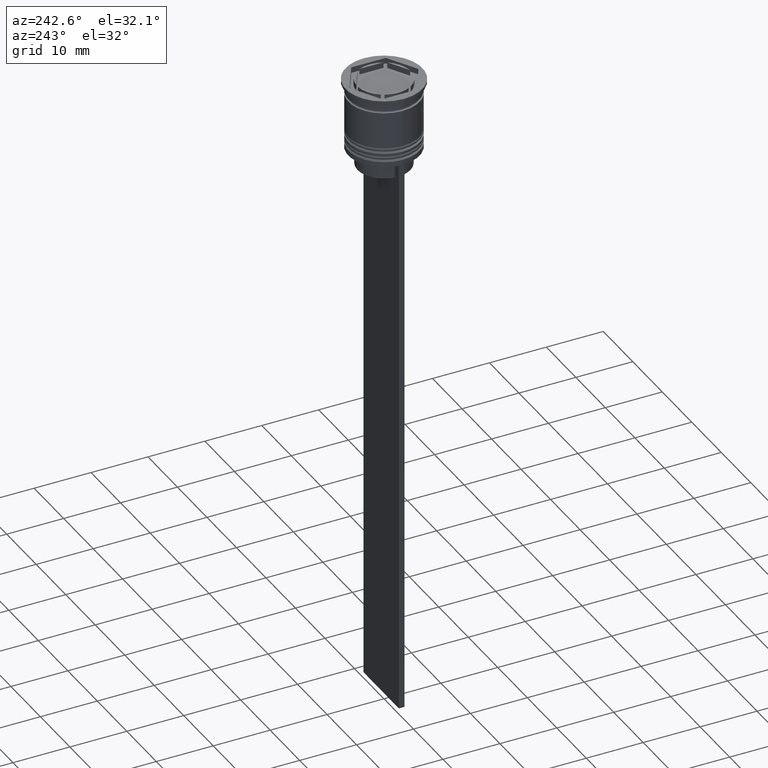
[diagram: clean part render]
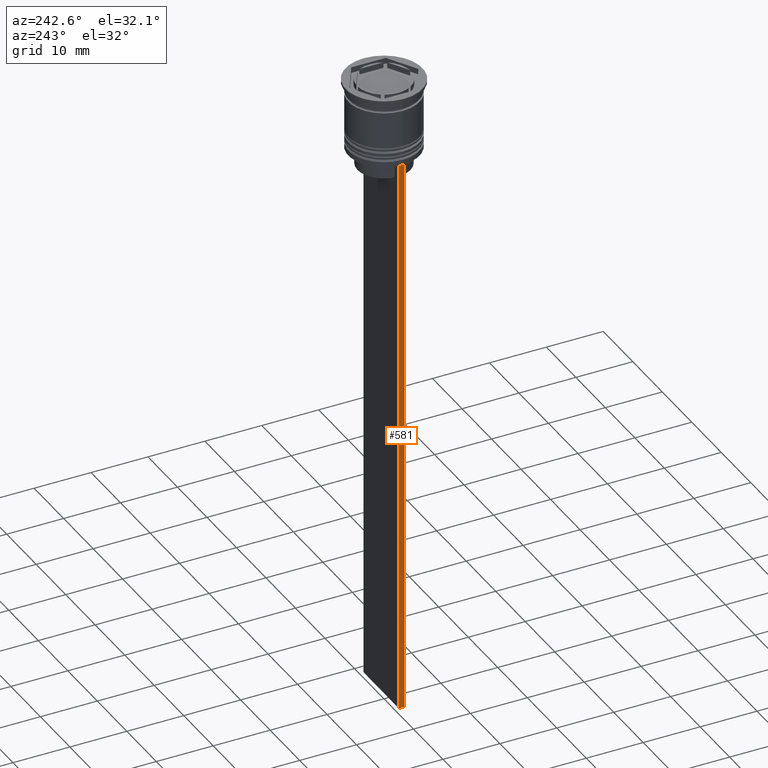
[diagram: same view with one face highlighted and labeled with its STEP entity id]
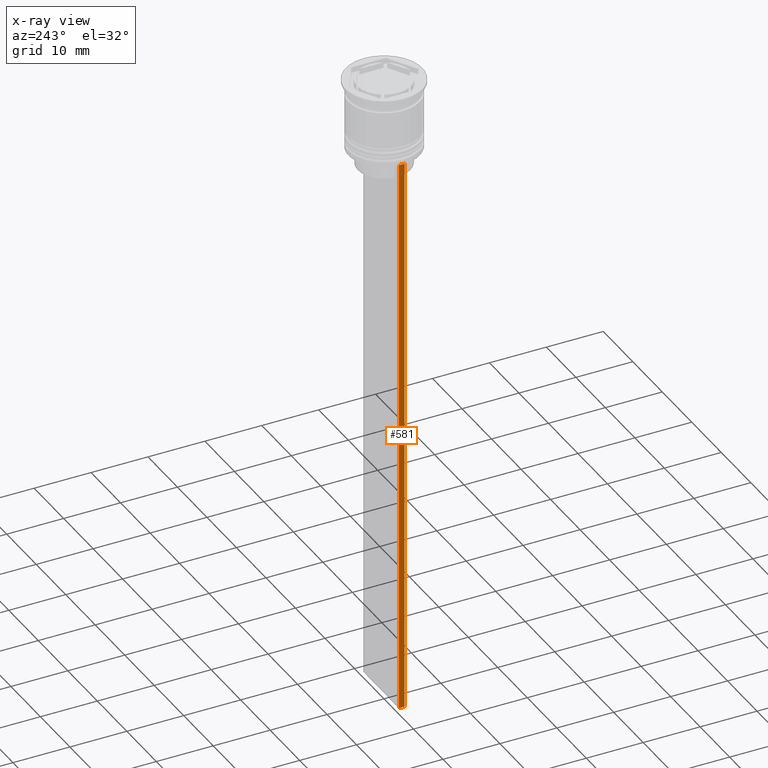
[diagram: x-ray of the same camera — body ghosted, the highlighted face saturated]
A machine part, auxiliary view. The second image highlights one B-rep face of the part: STEP entity #581.
The next image is the same camera in x-ray: the body ghosted, the highlighted face saturated — about 0% of this face is hidden behind the body in this view.
In plain terms, the highlighted planar face has unit normal (-1, 0, 0).
Its self-contained STEP definition (entity closure, byte-faithful):
#3 = ORIENTED_EDGE ( 'NONE', *, *, #1563, .T. ) ;
#18 = DIRECTION ( 'NONE',  ( 0.000000000000000000, 1.000000000000000000, 0.000000000000000000 ) ) ;
#84 = CARTESIAN_POINT ( 'NONE',  ( -5.999999999999983125, -0.5000000000000017764, -12.50000000000000000 ) ) ;
#220 = EDGE_LOOP ( 'NONE', ( #968, #3, #1863, #418 ) ) ;
#418 = ORIENTED_EDGE ( 'NONE', *, *, #2159, .F. ) ;
#435 = VECTOR ( 'NONE', #18, 1000.000000000000000 ) ;
#437 = DIRECTION ( 'NONE',  ( 0.000000000000000000, 0.000000000000000000, -1.000000000000000000 ) ) ;
#570 = EDGE_CURVE ( 'NONE', #2320, #1318, #774, .T. ) ;
#581 = ADVANCED_FACE ( 'NONE', ( #922 ), #2229, .T. ) ;
#613 = DIRECTION ( 'NONE',  ( -1.000000000000000000, 0.000000000000000000, 0.000000000000000000 ) ) ;
#721 = VERTEX_POINT ( 'NONE', #977 ) ;
#736 = VECTOR ( 'NONE', #437, 1000.000000000000000 ) ;
#774 = LINE ( 'NONE', #84, #879 ) ;
#784 = DIRECTION ( 'NONE',  ( 0.000000000000000000, -1.000000000000000000, 0.000000000000000000 ) ) ;
#792 = CARTESIAN_POINT ( 'NONE',  ( -5.999999999999983125, -0.5000000000000017764, -0.4584054212077061097 ) ) ;
#878 = VECTOR ( 'NONE', #1703, 1000.000000000000000 ) ;
#879 = VECTOR ( 'NONE', #784, 1000.000000000000000 ) ;
#922 = FACE_OUTER_BOUND ( 'NONE', #220, .T. ) ;
#968 = ORIENTED_EDGE ( 'NONE', *, *, #570, .F. ) ;
#977 = CARTESIAN_POINT ( 'NONE',  ( -5.999999999999983125, -0.5000000000000017764, -112.5000000000000000 ) ) ;
#1056 = CARTESIAN_POINT ( 'NONE',  ( -5.999999999999983125, -0.5000000000000017764, -12.50000000000000000 ) ) ;
#1318 = VERTEX_POINT ( 'NONE', #1056 ) ;
#1353 = EDGE_CURVE ( 'NONE', #721, #1811, #1482, .T. ) ;
#1354 = LINE ( 'NONE', #2277, #878 ) ;
#1391 = CARTESIAN_POINT ( 'NONE',  ( -5.999999999999983125, 0.4999999999999982792, -112.5000000000000000 ) ) ;
#1419 = AXIS2_PLACEMENT_3D ( 'NONE', #792, #613, #1832 ) ;
#1482 = LINE ( 'NONE', #2212, #435 ) ;
#1563 = EDGE_CURVE ( 'NONE', #2320, #1811, #1354, .T. ) ;
#1699 = CARTESIAN_POINT ( 'NONE',  ( -5.999999999999983125, -0.5000000000000017764, -0.4584054212077061097 ) ) ;
#1703 = DIRECTION ( 'NONE',  ( 0.000000000000000000, 0.000000000000000000, -1.000000000000000000 ) ) ;
#1811 = VERTEX_POINT ( 'NONE', #1391 ) ;
#1832 = DIRECTION ( 'NONE',  ( 0.000000000000000000, 0.000000000000000000, 1.000000000000000000 ) ) ;
#1863 = ORIENTED_EDGE ( 'NONE', *, *, #1353, .F. ) ;
#1922 = CARTESIAN_POINT ( 'NONE',  ( -5.999999999999983125, 0.4999999999999985012, -12.50000000000000000 ) ) ;
#2061 = LINE ( 'NONE', #1699, #736 ) ;
#2159 = EDGE_CURVE ( 'NONE', #1318, #721, #2061, .T. ) ;
#2212 = CARTESIAN_POINT ( 'NONE',  ( -5.999999999999983125, -0.5000000000000017764, -112.5000000000000000 ) ) ;
#2229 = PLANE ( 'NONE',  #1419 ) ;
#2277 = CARTESIAN_POINT ( 'NONE',  ( -5.999999999999983125, 0.4999999999999982792, -0.4584054212077061097 ) ) ;
#2320 = VERTEX_POINT ( 'NONE', #1922 ) ;